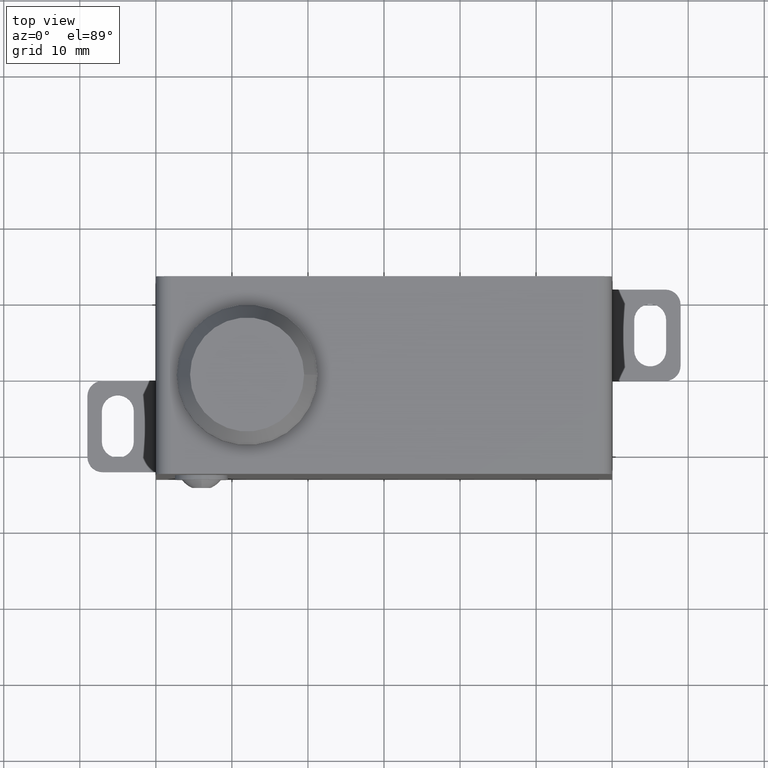
[diagram: clean part render]
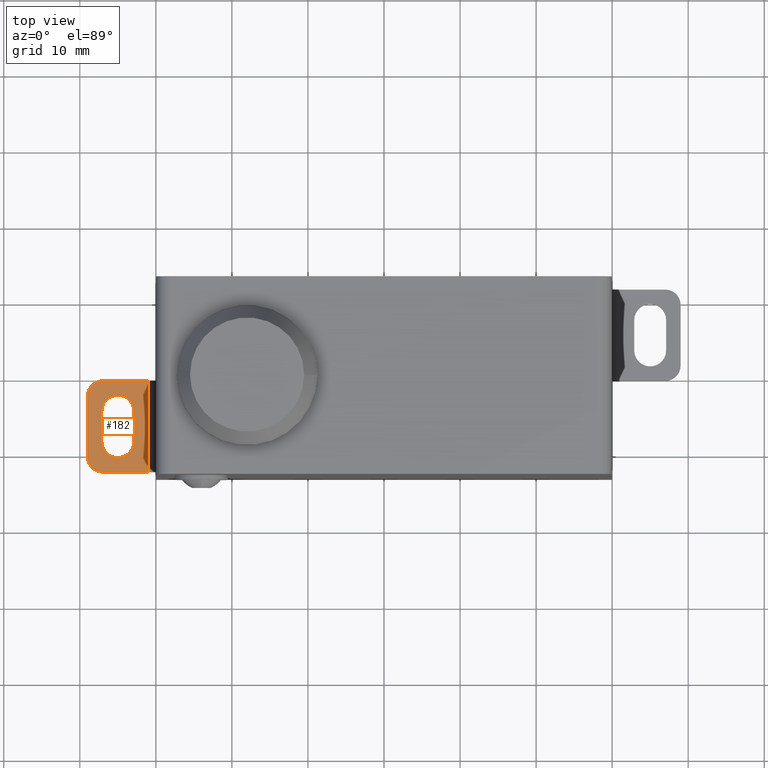
[diagram: same view with one face highlighted and labeled with its STEP entity id]
A machine part, top view. The second image highlights one B-rep face of the part: STEP entity #182.
In plain terms, the highlighted planar face has unit normal (0, -0, 1).
Its self-contained STEP definition (entity closure, byte-faithful):
#182 = ADVANCED_FACE( '', ( #375, #376 ), #377, .T. );
#375 = FACE_BOUND( '', #602, .T. );
#376 = FACE_OUTER_BOUND( '', #603, .T. );
#377 = PLANE( '', #604 );
#602 = EDGE_LOOP( '', ( #1077, #1078, #1079, #1080 ) );
#603 = EDGE_LOOP( '', ( #1081, #1082, #1083, #1084, #1085, #1086 ) );
#604 = AXIS2_PLACEMENT_3D( '', #1087, #1088, #1089 );
#1077 = ORIENTED_EDGE( '', *, *, #1225, .T. );
#1078 = ORIENTED_EDGE( '', *, *, #1297, .T. );
#1079 = ORIENTED_EDGE( '', *, *, #1346, .T. );
#1080 = ORIENTED_EDGE( '', *, *, #1229, .T. );
#1081 = ORIENTED_EDGE( '', *, *, #1166, .T. );
#1082 = ORIENTED_EDGE( '', *, *, #1171, .T. );
#1083 = ORIENTED_EDGE( '', *, *, #1272, .T. );
#1084 = ORIENTED_EDGE( '', *, *, #1347, .T. );
#1085 = ORIENTED_EDGE( '', *, *, #1175, .T. );
#1086 = ORIENTED_EDGE( '', *, *, #1293, .T. );
#1087 = CARTESIAN_POINT( '', ( -37.0000000000000, -2.00000000000000, 1.00000000000000 ) );
#1088 = DIRECTION( '', ( 0.000000000000000, -0.000000000000000, 1.00000000000000 ) );
#1089 = DIRECTION( '', ( 0.000000000000000, 1.00000000000000, 0.000000000000000 ) );
#1166 = EDGE_CURVE( '', #1384, #1382, #1385, .T. );
#1171 = EDGE_CURVE( '', #1382, #1390, #1392, .T. );
#1175 = EDGE_CURVE( '', #1399, #1397, #1400, .T. );
#1225 = EDGE_CURVE( '', #1485, #1483, #1486, .T. );
#1229 = EDGE_CURVE( '', #1491, #1485, #1492, .T. );
#1272 = EDGE_CURVE( '', #1390, #1554, #1556, .T. );
#1293 = EDGE_CURVE( '', #1397, #1384, #1589, .T. );
#1297 = EDGE_CURVE( '', #1483, #1593, #1595, .T. );
#1346 = EDGE_CURVE( '', #1593, #1491, #1650, .T. );
#1347 = EDGE_CURVE( '', #1554, #1399, #1651, .T. );
#1382 = VERTEX_POINT( '', #1695 );
#1384 = VERTEX_POINT( '', #1697 );
#1385 = LINE( '', #1698, #1699 );
#1390 = VERTEX_POINT( '', #1706 );
#1392 = LINE( '', #1708, #1709 );
#1397 = VERTEX_POINT( '', #1715 );
#1399 = VERTEX_POINT( '', #1718 );
#1400 = LINE( '', #1719, #1720 );
#1483 = VERTEX_POINT( '', #1837 );
#1485 = VERTEX_POINT( '', #1840 );
#1486 = LINE( '', #1841, #1842 );
#1491 = VERTEX_POINT( '', #1848 );
#1492 = CIRCLE( '', #1849, 2.10000000000000 );
#1554 = VERTEX_POINT( '', #1934 );
#1556 = LINE( '', #1937, #1938 );
#1589 = CIRCLE( '', #1977, 2.00000000000000 );
#1593 = VERTEX_POINT( '', #1981 );
#1595 = CIRCLE( '', #1984, 2.10000000000000 );
#1650 = LINE( '', #2056, #2057 );
#1651 = CIRCLE( '', #2058, 2.00000000000000 );
#1695 = CARTESIAN_POINT( '', ( -31.0000000000000, -12.0000000000000, 1.00000000000000 ) );
#1697 = CARTESIAN_POINT( '', ( -37.0000000000000, -12.0000000000000, 1.00000000000000 ) );
#1698 = CARTESIAN_POINT( '', ( -37.0000000000000, -12.0000000000000, 1.00000000000000 ) );
#1699 = VECTOR( '', #2086, 1000.00000000000 );
#1706 = CARTESIAN_POINT( '', ( -31.0000000000000, 0.000000000000000, 1.00000000000000 ) );
#1708 = CARTESIAN_POINT( '', ( -31.0000000000000, 0.000000000000000, 1.00000000000000 ) );
#1709 = VECTOR( '', #2092, 1000.00000000000 );
#1715 = CARTESIAN_POINT( '', ( -39.0000000000000, -10.0000000000000, 1.00000000000000 ) );
#1718 = CARTESIAN_POINT( '', ( -39.0000000000000, -2.00000000000000, 1.00000000000000 ) );
#1719 = CARTESIAN_POINT( '', ( -39.0000000000000, -2.00000000000000, 1.00000000000000 ) );
#1720 = VECTOR( '', #2095, 1000.00000000000 );
#1837 = CARTESIAN_POINT( '', ( -37.1000000000000, -4.00000000000000, 1.00000000000000 ) );
#1840 = CARTESIAN_POINT( '', ( -37.1000000000000, -8.00000000000000, 1.00000000000000 ) );
#1841 = CARTESIAN_POINT( '', ( -37.1000000000000, -8.00000000000000, 1.00000000000000 ) );
#1842 = VECTOR( '', #2149, 1000.00000000000 );
#1848 = CARTESIAN_POINT( '', ( -32.9000000000000, -8.00000000000000, 1.00000000000000 ) );
#1849 = AXIS2_PLACEMENT_3D( '', #2154, #2155, #2156 );
#1934 = CARTESIAN_POINT( '', ( -37.0000000000000, 0.000000000000000, 1.00000000000000 ) );
#1937 = CARTESIAN_POINT( '', ( -30.0000000000000, 0.000000000000000, 1.00000000000000 ) );
#1938 = VECTOR( '', #2208, 1000.00000000000 );
#1977 = AXIS2_PLACEMENT_3D( '', #2242, #2243, #2244 );
#1981 = CARTESIAN_POINT( '', ( -32.9000000000000, -4.00000000000000, 1.00000000000000 ) );
#1984 = AXIS2_PLACEMENT_3D( '', #2249, #2250, #2251 );
#2056 = CARTESIAN_POINT( '', ( -32.9000000000000, -4.00000000000000, 1.00000000000000 ) );
#2057 = VECTOR( '', #2296, 1000.00000000000 );
#2058 = AXIS2_PLACEMENT_3D( '', #2297, #2298, #2299 );
#2086 = DIRECTION( '', ( 1.00000000000000, 0.000000000000000, 0.000000000000000 ) );
#2092 = DIRECTION( '', ( 0.000000000000000, 1.00000000000000, -0.000000000000000 ) );
#2095 = DIRECTION( '', ( 0.000000000000000, -1.00000000000000, 0.000000000000000 ) );
#2149 = DIRECTION( '', ( 0.000000000000000, 1.00000000000000, 0.000000000000000 ) );
#2154 = CARTESIAN_POINT( '', ( -35.0000000000000, -8.00000000000000, 1.00000000000000 ) );
#2155 = DIRECTION( '', ( 0.000000000000000, 0.000000000000000, -1.00000000000000 ) );
#2156 = DIRECTION( '', ( -1.00000000000000, 0.000000000000000, 0.000000000000000 ) );
#2208 = DIRECTION( '', ( -1.00000000000000, 0.000000000000000, 0.000000000000000 ) );
#2242 = CARTESIAN_POINT( '', ( -37.0000000000000, -10.0000000000000, 1.00000000000000 ) );
#2243 = DIRECTION( '', ( 0.000000000000000, 0.000000000000000, 1.00000000000000 ) );
#2244 = DIRECTION( '', ( -1.00000000000000, 0.000000000000000, 0.000000000000000 ) );
#2249 = CARTESIAN_POINT( '', ( -35.0000000000000, -4.00000000000000, 1.00000000000000 ) );
#2250 = DIRECTION( '', ( 0.000000000000000, 0.000000000000000, -1.00000000000000 ) );
#2251 = DIRECTION( '', ( 1.00000000000000, 0.000000000000000, 0.000000000000000 ) );
#2296 = DIRECTION( '', ( 0.000000000000000, -1.00000000000000, 0.000000000000000 ) );
#2297 = CARTESIAN_POINT( '', ( -37.0000000000000, -2.00000000000000, 1.00000000000000 ) );
#2298 = DIRECTION( '', ( 0.000000000000000, -0.000000000000000, 1.00000000000000 ) );
#2299 = DIRECTION( '', ( 0.000000000000000, 1.00000000000000, 0.000000000000000 ) );